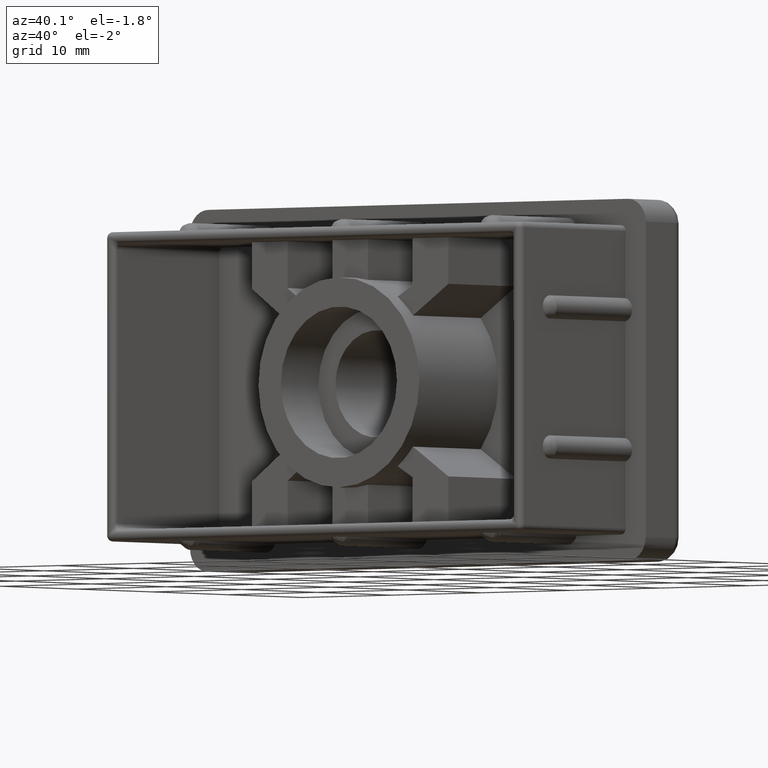
[diagram: clean part render]
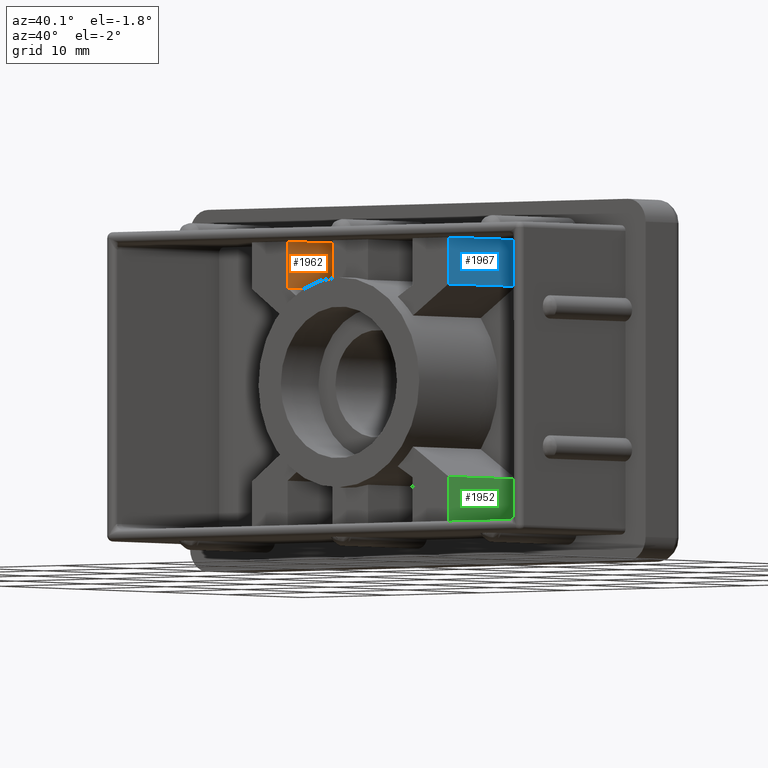
[diagram: same view with three faces highlighted in distinct colors, each labeled with its STEP entity id]
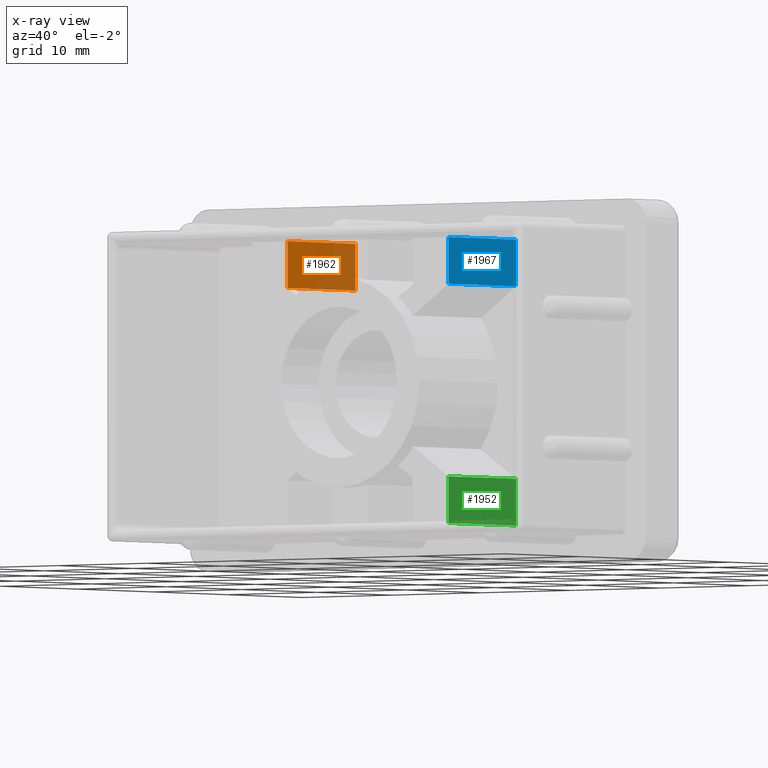
[diagram: x-ray of the same camera — body ghosted, the three highlighted faces saturated]
A machine part, auxiliary view with three faces highlighted in distinct colors.
The next image is the same camera in x-ray (body ghosted, the three faces saturated) — at least one of them is partly hidden behind the body in this view.
Their STEP definitions:

[orange] entity #1962 — the highlighted planar face has unit normal (1, 0, 0).
#95=PLANE('',#2126);
#174=LINE('',#2932,#350);
#289=LINE('',#4081,#465);
#294=LINE('',#4091,#470);
#296=LINE('',#4094,#472);
#350=VECTOR('',#2252,9.);
#465=VECTOR('',#2595,9.);
#470=VECTOR('',#2606,4.);
#472=VECTOR('',#2610,4.);
#606=FACE_OUTER_BOUND('',#716,.T.);
#716=EDGE_LOOP('',(#1785,#1786,#1787,#1788));
#870=VERTEX_POINT('',#2929);
#871=VERTEX_POINT('',#2931);
#991=VERTEX_POINT('',#4078);
#992=VERTEX_POINT('',#4080);
#1072=EDGE_CURVE('',#870,#871,#174,.T.);
#1266=EDGE_CURVE('',#991,#992,#289,.T.);
#1272=EDGE_CURVE('',#992,#870,#294,.T.);
#1274=EDGE_CURVE('',#871,#991,#296,.T.);
#1785=ORIENTED_EDGE('',*,*,#1274,.F.);
#1786=ORIENTED_EDGE('',*,*,#1072,.F.);
#1787=ORIENTED_EDGE('',*,*,#1272,.F.);
#1788=ORIENTED_EDGE('',*,*,#1266,.F.);
#1962=ADVANCED_FACE('',(#606),#95,.T.);
#2126=AXIS2_PLACEMENT_3D('',#4093,#2608,#2609);
#2252=DIRECTION('',(0.,1.,0.));
#2595=DIRECTION('',(0.,-1.,0.));
#2606=DIRECTION('',(0.,0.,1.));
#2608=DIRECTION('center_axis',(1.,0.,0.));
#2609=DIRECTION('ref_axis',(0.,0.,1.));
#2610=DIRECTION('',(0.,0.,-1.));
#2929=CARTESIAN_POINT('',(16.25,5.,-0.999999999999991));
#2931=CARTESIAN_POINT('',(16.25,14.,-0.999999999999991));
#2932=CARTESIAN_POINT('',(16.25,7.,-0.99999999999999));
#4078=CARTESIAN_POINT('',(16.25,14.,-4.99999999999999));
#4080=CARTESIAN_POINT('',(16.25,5.,-4.99999999999999));
#4081=CARTESIAN_POINT('',(16.25,14.,-4.99999999999999));
#4091=CARTESIAN_POINT('',(16.25,5.,-4.99999999999999));
#4093=CARTESIAN_POINT('Origin',(16.25,14.,-4.99999999999999));
#4094=CARTESIAN_POINT('',(16.25,14.,-9.12499999999999));

[blue] entity #1967 — the highlighted planar face has unit normal (1, 0, 0).
#100=PLANE('',#2132);
#182=LINE('',#2948,#358);
#279=LINE('',#4054,#455);
#298=LINE('',#4100,#474);
#304=LINE('',#4113,#480);
#358=VECTOR('',#2260,9.);
#455=VECTOR('',#2569,4.);
#474=VECTOR('',#2616,9.);
#480=VECTOR('',#2628,4.);
#611=FACE_OUTER_BOUND('',#721,.T.);
#721=EDGE_LOOP('',(#1807,#1808,#1809,#1810));
#878=VERTEX_POINT('',#2945);
#879=VERTEX_POINT('',#2947);
#983=VERTEX_POINT('',#4053);
#996=VERTEX_POINT('',#4099);
#1080=EDGE_CURVE('',#878,#879,#182,.T.);
#1253=EDGE_CURVE('',#879,#983,#279,.T.);
#1276=EDGE_CURVE('',#983,#996,#298,.T.);
#1283=EDGE_CURVE('',#996,#878,#304,.T.);
#1807=ORIENTED_EDGE('',*,*,#1253,.F.);
#1808=ORIENTED_EDGE('',*,*,#1080,.F.);
#1809=ORIENTED_EDGE('',*,*,#1283,.F.);
#1810=ORIENTED_EDGE('',*,*,#1276,.F.);
#1967=ADVANCED_FACE('',(#611),#100,.T.);
#2132=AXIS2_PLACEMENT_3D('',#4115,#2630,#2631);
#2260=DIRECTION('',(0.,1.,0.));
#2569=DIRECTION('',(0.,0.,-1.));
#2616=DIRECTION('',(0.,-1.,0.));
#2628=DIRECTION('',(0.,0.,1.));
#2630=DIRECTION('center_axis',(1.,0.,0.));
#2631=DIRECTION('ref_axis',(0.,0.,1.));
#2945=CARTESIAN_POINT('',(34.25,5.,-0.999999999999988));
#2947=CARTESIAN_POINT('',(34.25,14.,-0.999999999999988));
#2948=CARTESIAN_POINT('',(34.25,7.,-0.999999999999986));
#4053=CARTESIAN_POINT('',(34.25,14.,-4.99999999999999));
#4054=CARTESIAN_POINT('',(34.25,14.,-9.12499999999999));
#4099=CARTESIAN_POINT('',(34.25,5.,-4.99999999999999));
#4100=CARTESIAN_POINT('',(34.25,14.,-4.99999999999999));
#4113=CARTESIAN_POINT('',(34.25,5.,-4.99999999999999));
#4115=CARTESIAN_POINT('Origin',(34.25,14.,-4.99999999999999));

[green] entity #1952 — the highlighted planar face has unit normal (-1, 0, -0).
#85=PLANE('',#2112);
#152=LINE('',#2842,#328);
#268=LINE('',#4032,#444);
#275=LINE('',#4046,#451);
#276=LINE('',#4048,#452);
#328=VECTOR('',#2206,9.);
#444=VECTOR('',#2546,9.);
#451=VECTOR('',#2559,4.);
#452=VECTOR('',#2562,4.);
#596=FACE_OUTER_BOUND('',#706,.T.);
#706=EDGE_LOOP('',(#1736,#1737,#1738,#1739));
#844=VERTEX_POINT('',#2839);
#845=VERTEX_POINT('',#2841);
#977=VERTEX_POINT('',#4029);
#978=VERTEX_POINT('',#4031);
#1042=EDGE_CURVE('',#844,#845,#152,.T.);
#1241=EDGE_CURVE('',#978,#977,#268,.T.);
#1249=EDGE_CURVE('',#977,#845,#275,.T.);
#1250=EDGE_CURVE('',#978,#844,#276,.T.);
#1736=ORIENTED_EDGE('',*,*,#1250,.F.);
#1737=ORIENTED_EDGE('',*,*,#1241,.T.);
#1738=ORIENTED_EDGE('',*,*,#1249,.T.);
#1739=ORIENTED_EDGE('',*,*,#1042,.F.);
#1952=ADVANCED_FACE('',(#596),#85,.F.);
#2112=AXIS2_PLACEMENT_3D('',#4047,#2560,#2561);
#2206=DIRECTION('',(0.,-1.,0.));
#2546=DIRECTION('',(0.,-1.,0.));
#2559=DIRECTION('',(5.2245789394125E-16,0.,-1.));
#2560=DIRECTION('center_axis',(-1.,0.,-5.2245789394125E-16));
#2561=DIRECTION('ref_axis',(7.105427357601E-16,0.,-1.));
#2562=DIRECTION('',(5.2245789394125E-16,0.,-1.));
#2839=CARTESIAN_POINT('',(34.25,14.,-25.5));
#2841=CARTESIAN_POINT('',(34.25,5.,-25.5));
#2842=CARTESIAN_POINT('',(34.25,7.,-25.5));
#4029=CARTESIAN_POINT('',(34.25,5.,-21.5));
#4031=CARTESIAN_POINT('',(34.25,14.,-21.5));
#4032=CARTESIAN_POINT('',(34.25,14.,-21.5));
#4046=CARTESIAN_POINT('',(34.25,5.,-21.5));
#4047=CARTESIAN_POINT('Origin',(34.25,14.,-21.5));
#4048=CARTESIAN_POINT('',(34.25,14.,-17.375));